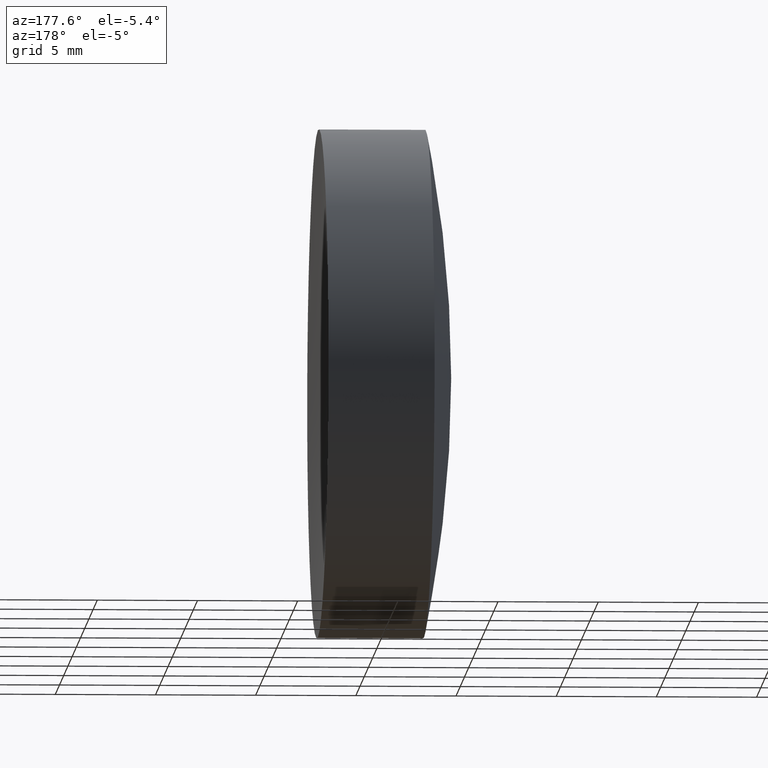
[diagram: clean part render]
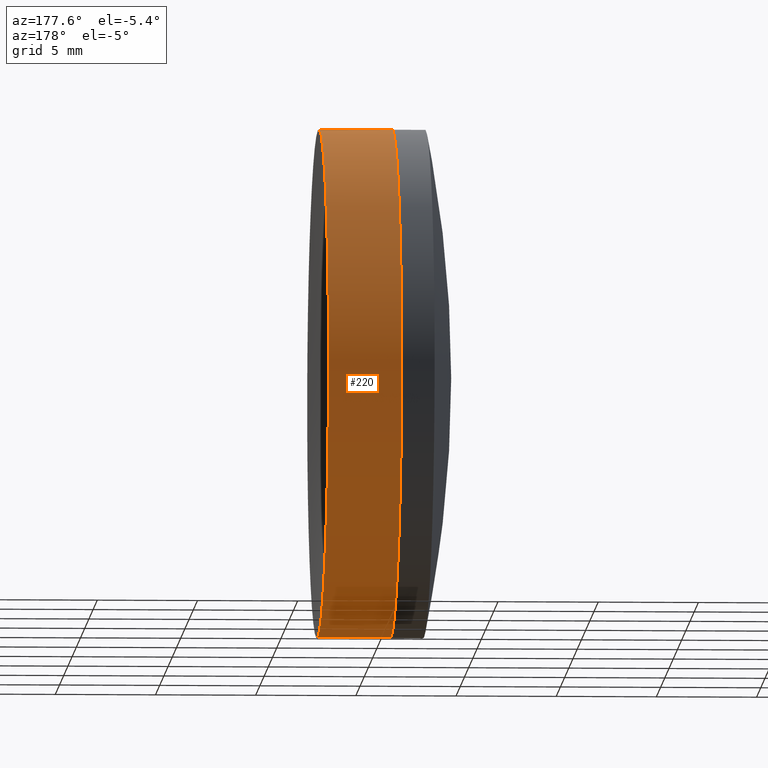
[diagram: same view with one face highlighted and labeled with its STEP entity id]
A machine part, auxiliary view. The second image highlights one B-rep face of the part: STEP entity #220.
In plain terms, the highlighted cylindrical surface (partial cylindrical patch) has radius 12.7 mm, axis along (-1, -0, -0).
Its self-contained STEP definition (entity closure, byte-faithful):
#20 = DIRECTION ( 'NONE',  ( 0.0000000000000000000, 0.0000000000000000000, 1.000000000000000000 ) ) ;
#35 = AXIS2_PLACEMENT_3D ( 'NONE', #160, #265, #338 ) ;
#39 = VECTOR ( 'NONE', #104, 1000.000000000000000 ) ;
#42 = EDGE_CURVE ( 'NONE', #184, #91, #48, .T. ) ;
#43 = DIRECTION ( 'NONE',  ( -1.000000000000000000, -0.0000000000000000000, -0.0000000000000000000 ) ) ;
#48 = CIRCLE ( 'NONE', #212, 12.70000000000012700 ) ;
#77 = VECTOR ( 'NONE', #43, 1000.000000000000000 ) ;
#79 = EDGE_CURVE ( 'NONE', #312, #191, #135, .T. ) ;
#80 = EDGE_LOOP ( 'NONE', ( #189, #264, #321, #222 ) ) ;
#91 = VERTEX_POINT ( 'NONE', #193 ) ;
#99 = CARTESIAN_POINT ( 'NONE',  ( -0.5519199926577972300, 0.0000000000000000000, 12.70000000000000600 ) ) ;
#104 = DIRECTION ( 'NONE',  ( -1.000000000000000000, -0.0000000000000000000, -0.0000000000000000000 ) ) ;
#116 = LINE ( 'NONE', #231, #39 ) ;
#117 = CARTESIAN_POINT ( 'NONE',  ( 339.2914657323959800, 0.0000000000000000000, 12.69999999999989600 ) ) ;
#121 = CARTESIAN_POINT ( 'NONE',  ( 342.9436857372973000, 0.0000000000000000000, 12.70000000000012700 ) ) ;
#128 = EDGE_CURVE ( 'NONE', #184, #312, #344, .T. ) ;
#135 = CIRCLE ( 'NONE', #244, 12.69999999999988400 ) ;
#136 = CARTESIAN_POINT ( 'NONE',  ( 339.2914657323959800, 1.555301434917126000E-015, -12.70000000000017900 ) ) ;
#158 = DIRECTION ( 'NONE',  ( 0.0000000000000000000, 0.0000000000000000000, 1.000000000000000000 ) ) ;
#159 = DIRECTION ( 'NONE',  ( -1.000000000000000000, -0.0000000000000000000, -0.0000000000000000000 ) ) ;
#160 = CARTESIAN_POINT ( 'NONE',  ( -0.5519199926577972300, 0.0000000000000000000, 0.0000000000000000000 ) ) ;
#174 = CARTESIAN_POINT ( 'NONE',  ( 342.9436857372973000, 0.0000000000000000000, 0.0000000000000000000 ) ) ;
#184 = VERTEX_POINT ( 'NONE', #121 ) ;
#189 = ORIENTED_EDGE ( 'NONE', *, *, #42, .T. ) ;
#191 = VERTEX_POINT ( 'NONE', #136 ) ;
#193 = CARTESIAN_POINT ( 'NONE',  ( 342.9436857372973000, 1.555301434917154200E-015, -12.70000000000012700 ) ) ;
#212 = AXIS2_PLACEMENT_3D ( 'NONE', #174, #232, #20 ) ;
#220 = ADVANCED_FACE ( 'NONE', ( #258 ), #255, .T. ) ;
#222 = ORIENTED_EDGE ( 'NONE', *, *, #128, .F. ) ;
#231 = CARTESIAN_POINT ( 'NONE',  ( -0.5519199926577972300, 1.555301434917139200E-015, -12.70000000000000600 ) ) ;
#232 = DIRECTION ( 'NONE',  ( -1.000000000000000000, -0.0000000000000000000, -0.0000000000000000000 ) ) ;
#244 = AXIS2_PLACEMENT_3D ( 'NONE', #307, #159, #158 ) ;
#255 = CYLINDRICAL_SURFACE ( 'NONE', #35, 12.70000000000000600 ) ;
#258 = FACE_OUTER_BOUND ( 'NONE', #80, .T. ) ;
#264 = ORIENTED_EDGE ( 'NONE', *, *, #277, .T. ) ;
#265 = DIRECTION ( 'NONE',  ( -1.000000000000000000, -0.0000000000000000000, -0.0000000000000000000 ) ) ;
#277 = EDGE_CURVE ( 'NONE', #91, #191, #116, .T. ) ;
#307 = CARTESIAN_POINT ( 'NONE',  ( 339.2914657323959800, 0.0000000000000000000, 0.0000000000000000000 ) ) ;
#312 = VERTEX_POINT ( 'NONE', #117 ) ;
#321 = ORIENTED_EDGE ( 'NONE', *, *, #79, .F. ) ;
#338 = DIRECTION ( 'NONE',  ( 0.0000000000000000000, 0.0000000000000000000, 1.000000000000000000 ) ) ;
#344 = LINE ( 'NONE', #99, #77 ) ;